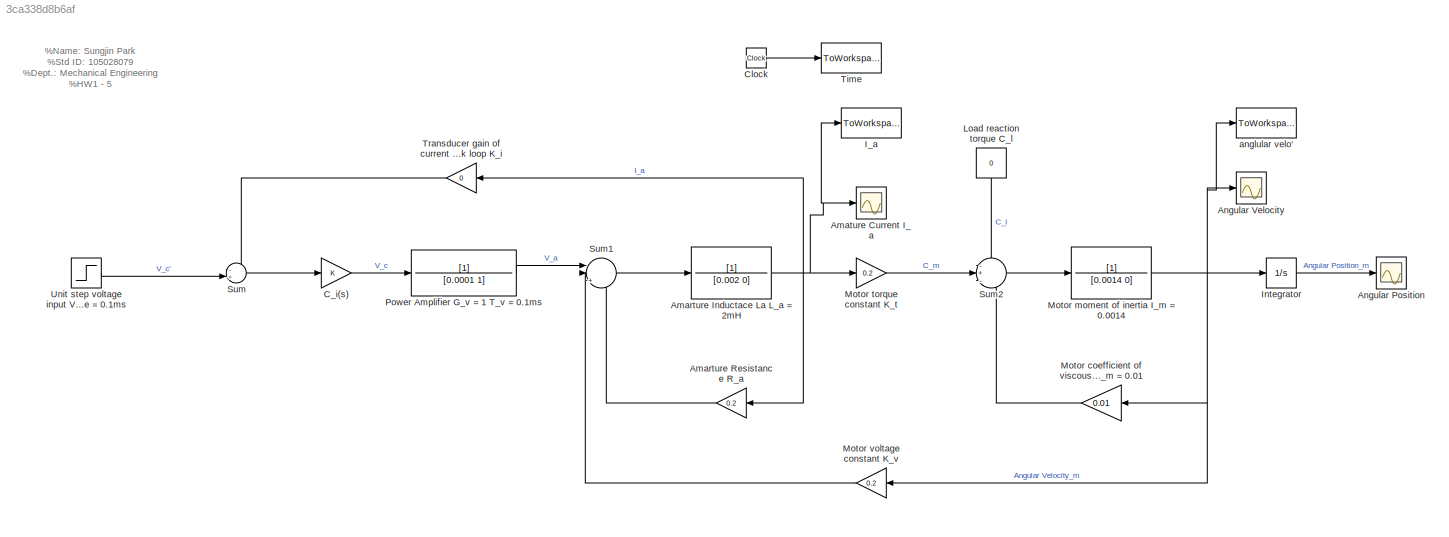
MODEL slx_3ca338d8b6af
KIND model
CONFIG AbsTol = auto
CONFIG EnableMultiTasking = off
CONFIG FixedStep = auto
CONFIG MaxStep = auto
CONFIG MinStep = auto
CONFIG RelTol = 1e-3
CONFIG SampleTimeConstraint = Unconstrained
CONFIG Solver = VariableStepAuto
CONFIG SolverName = VariableStepAuto
CONFIG StartTime = 0.0
CONFIG StopTime = 0.15
BLOCK [ToWorkspace]  I_a
  FixptAsFi = on
  MaxDataPoints = inf
  Ports = [1]
  SampleTime = 0.0001
  Save2DSignal = 3-D array (concatenate along third dimension)
  SaveFormat = Timeseries
  VariableName = I_a
BLOCK [TransferFcn] Amarture Inductace La L_a = 2mH
  Denominator = [0.002 0]
BLOCK [Gain] Amarture Resistance R_a
  Gain = 0.2
  OutDataTypeStr = Inherit: Inherit via internal rule
  ParamDataTypeStr = Inherit: Inherit via internal rule
  SaturateOnIntegerOverflow = off
BLOCK [Scope] Amature Current I_a
  NumInputPorts = 1
  Ports = [1]
  ScopeSpecificationString = Simulink.scopes.TimeScopeBlockCfg('CurrentConfiguration', extmgr.ConfigurationSet(extmgr.Configuration('Core','General UI',true),extmgr.Configuration('Core','Source UI',true),extmgr.Configuration('Sources','WiredSimulink',true,'DataLoggingVariableName','ScopeData2','SampleTime','0.0001'),extmgr.Configuration('Visuals','Time Domain',true,'SerializedDisplays',{struct('MinYLimReal','-0.59338','MaxYLi...<+1592ch>
BLOCK [Scope] Angular Position
  NumInputPorts = 1
  Ports = [1]
  ScopeSpecificationString = Simulink.scopes.TimeScopeBlockCfg('CurrentConfiguration', extmgr.ConfigurationSet(extmgr.Configuration('Core','General UI',true),extmgr.Configuration('Core','Source UI',true),extmgr.Configuration('Sources','WiredSimulink',true,'DataLoggingVariableName','ScopeData1'),extmgr.Configuration('Visuals','Time Domain',true,'SerializedDisplays',{struct('MinYLimReal','-0.08497','MaxYLimReal','0.76477','YLab...<+1377ch>
BLOCK [Scope] Angular Velocity
  NumInputPorts = 1
  Ports = [1]
  ScopeSpecificationString = Simulink.scopes.TimeScopeBlockCfg('CurrentConfiguration', extmgr.ConfigurationSet(extmgr.Configuration('Core','General UI',true),extmgr.Configuration('Core','Source UI',true),extmgr.Configuration('Sources','WiredSimulink',true,'SampleTime','0.0001'),extmgr.Configuration('Visuals','Time Domain',true,'SerializedDisplays',{struct('MinYLimReal','-0.72436','MaxYLimReal','6.51927','YLabelReal','Angular ...<+1503ch>
BLOCK [Gain] C_i(s)
  OutDataTypeStr = Inherit: Inherit via internal rule
  ParamDataTypeStr = Inherit: Inherit via internal rule
  SaturateOnIntegerOverflow = off
BLOCK [Clock] Clock
BLOCK [Integrator] Integrator
  Ports = [1, 1]
BLOCK [Constant] Load reaction torque C_l
  SampleTime = 0.0001
  Value = 0
BLOCK [Gain] Motor coefficient of viscous friction F_m = 0.01
  Gain = 0.01
  OutDataTypeStr = Inherit: Inherit via internal rule
  ParamDataTypeStr = Inherit: Inherit via internal rule
  SaturateOnIntegerOverflow = off
BLOCK [TransferFcn] Motor moment of inertia I_m = 0.0014
  Denominator = [0.0014 0]
BLOCK [Gain] Motor torque constant K_t
  Gain = 0.2
  OutDataTypeStr = Inherit: Inherit via internal rule
  ParamDataTypeStr = Inherit: Inherit via internal rule
  SaturateOnIntegerOverflow = off
BLOCK [Gain] Motor voltage constant K_v
  Gain = 0.2
  OutDataTypeStr = Inherit: Inherit via internal rule
  ParamDataTypeStr = Inherit: Inherit via internal rule
  SaturateOnIntegerOverflow = off
BLOCK [TransferFcn] Power Amplifier G_v = 1 T_v = 0.1ms
  Denominator = [0.0001 1]
BLOCK [Sum] Sum
  IconShape = round
  InputSameDT = off
  Inputs = -+|
  OutDataTypeStr = Inherit: Inherit via internal rule
  Ports = [2, 1]
  SaturateOnIntegerOverflow = off
BLOCK [Sum] Sum1
  IconShape = round
  InputSameDT = off
  Inputs = ||+--
  OutDataTypeStr = Inherit: Inherit via internal rule
  Ports = [3, 1]
  SaturateOnIntegerOverflow = off
BLOCK [Sum] Sum2
  IconShape = round
  InputSameDT = off
  Inputs = -+-
  OutDataTypeStr = Inherit: Inherit via internal rule
  Ports = [3, 1]
  SaturateOnIntegerOverflow = off
BLOCK [ToWorkspace] Time
  FixptAsFi = on
  MaxDataPoints = inf
  Ports = [1]
  SampleTime = 0.0001
  Save2DSignal = 3-D array (concatenate along third dimension)
  SaveFormat = Timeseries
  VariableName = t
BLOCK [Gain] Transducer gain of current feedback loop K_i
  Gain = 0
  OutDataTypeStr = Inherit: Inherit via internal rule
  ParamDataTypeStr = Inherit: Inherit via internal rule
  SaturateOnIntegerOverflow = off
BLOCK [Step] Unit step voltage input V_c' Sampling time = 0.1ms
  Before = 1
  SampleTime = 0.0001
BLOCK [ToWorkspace] anglular velo'
  FixptAsFi = on
  MaxDataPoints = inf
  Ports = [1]
  SampleTime = 0.0001
  Save2DSignal = 3-D array (concatenate along third dimension)
  SaveFormat = Timeseries
  VariableName = ang_vel
ANNOTATION (root): %Name: Sungjin Park %Std ID: 105028079 %Dept.: Mechanical Engineering %HW1 - 5
NET Amarture Inductace La L_a = 2mH:1 ->  I_a:1, Amarture Resistance R_a:1, Amature Current I_a:1, Motor torque constant K_t:1, Transducer gain of current feedback loop K_i:1
LINE Amarture Resistance R_a:1 -> Sum1:3
LINE C_i(s):1 -> Power Amplifier G_v = 1 T_v = 0.1ms:1
LINE Clock:1 -> Time:1
LINE Integrator:1 -> Angular Position:1
LINE Load reaction torque C_l:1 -> Sum2:1
LINE Motor coefficient of viscous friction F_m = 0.01:1 -> Sum2:3
NET Motor moment of inertia I_m = 0.0014:1 -> Angular Velocity:1, Integrator:1, Motor coefficient of viscous friction F_m = 0.01:1, Motor voltage constant K_v:1, anglular velo':1
LINE Motor torque constant K_t:1 -> Sum2:2
LINE Motor voltage constant K_v:1 -> Sum1:2
LINE Power Amplifier G_v = 1 T_v = 0.1ms:1 -> Sum1:1
LINE Sum1:1 -> Amarture Inductace La L_a = 2mH:1
LINE Sum2:1 -> Motor moment of inertia I_m = 0.0014:1
LINE Sum:1 -> C_i(s):1
LINE Transducer gain of current feedback loop K_i:1 -> Sum:1
LINE Unit step voltage input V_c' Sampling time = 0.1ms:1 -> Sum:2
note: NET lines group one-source signal fan-out (src -> all destinations, sorted); 1:1 wires keep LINE
